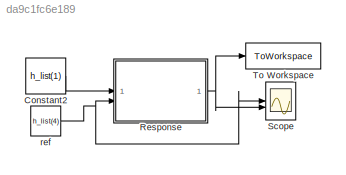
MODEL slx_da9c1fc6e189
KIND model
CONFIG AbsTol = auto
CONFIG EnableMultiTasking = off
CONFIG FixedStep = 0.02
CONFIG MaxStep = auto
CONFIG MinStep = auto
CONFIG RelTol = 1e-3
CONFIG SampleTimeConstraint = Unconstrained
CONFIG SolverName = ode4
CONFIG StartTime = 0.0
CONFIG StopTime = 250
BLOCK [Constant] Constant2
  Value = h_list(1)
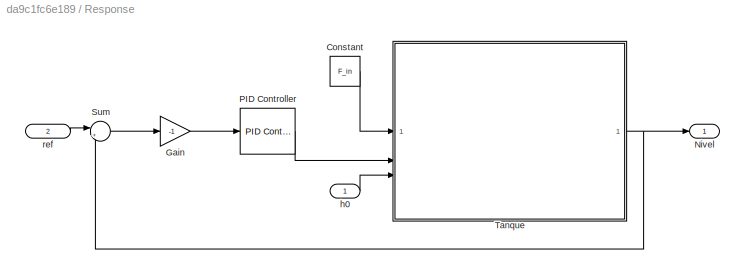
BLOCK [SubSystem] Response
BLOCK [Constant] Response/Constant
  Value = F_in
BLOCK [Gain] Response/Gain
  Gain = -1
BLOCK [Outport] Response/Nivel
BLOCK [Reference] Response/PID Controller  REF=slpidlib/PID Controller
  LibrarySourceBlock = simulink/Continuous/PID Controller
  SourceBlock = slpidlib/PID Controller
  SourceType = PID 1dof
BLOCK [Sum] Response/Sum
  Inputs = |+-
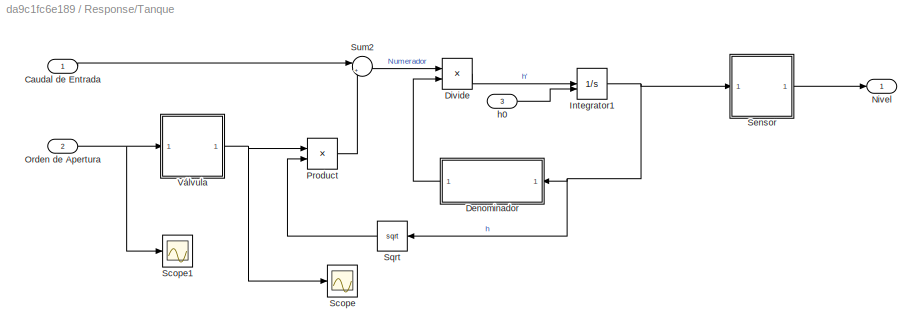
BLOCK [SubSystem] Response/Tanque
BLOCK [Inport] Response/Tanque/Caudal de Entrada
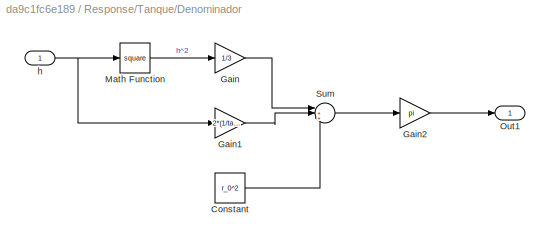
BLOCK [SubSystem] Response/Tanque/Denominador
  NameLocation = top
BLOCK [Constant] Response/Tanque/Denominador/Constant
  Value = r_0^2
BLOCK [Gain] Response/Tanque/Denominador/Gain
  Gain = 1/3
BLOCK [Gain] Response/Tanque/Denominador/Gain1
  Gain = 2*(1/tand(theta))*r_0
BLOCK [Gain] Response/Tanque/Denominador/Gain2
  Gain = pi
BLOCK [Math] Response/Tanque/Denominador/Math Function
  Operator = square
BLOCK [Outport] Response/Tanque/Denominador/Out1
BLOCK [Sum] Response/Tanque/Denominador/Sum
  Inputs = |+++
BLOCK [Inport] Response/Tanque/Denominador/h
BLOCK [Product] Response/Tanque/Divide
  Inputs = */
BLOCK [Integrator] Response/Tanque/Integrator1
  InitialCondition = h_list(5)
  InitialConditionSource = external
BLOCK [Outport] Response/Tanque/Nivel
BLOCK [Inport] Response/Tanque/Orden de Apertura
  Port = 2
BLOCK [Product] Response/Tanque/Product
BLOCK [Scope] Response/Tanque/Scope
  Floating = off
  NumInputPorts = 1
  ScopeSpecificationString = Simulink.scopes.TimeScopeBlockCfg('CurrentConfiguration', extmgr.ConfigurationSet(extmgr.Configuration('Core','General UI',true),extmgr.Configuration('Core','Source UI',true),extmgr.Configuration('Sources','WiredSimulink',true,'DataLoggingVariableName','ScopeData3'),extmgr.Configuration('Visuals','Time Domain',true,'SerializedDisplays',{struct('MinYLimReal','-0.00072','MaxYLimReal','0.00646','YLab...<+1455ch>
BLOCK [Scope] Response/Tanque/Scope1
  Floating = off
  NumInputPorts = 1
  ScopeSpecificationString = Simulink.scopes.TimeScopeBlockCfg('CurrentConfiguration', extmgr.ConfigurationSet(extmgr.Configuration('Core','General UI',true),extmgr.Configuration('Core','Source UI',true),extmgr.Configuration('Sources','WiredSimulink',true,'DataLoggingVariableName','ScopeData4'),extmgr.Configuration('Visuals','Time Domain',true,'SerializedDisplays',{struct('MinYLimReal','-0.10897','MaxYLimReal','0.98071','YLab...<+1500ch>
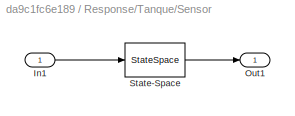
BLOCK [SubSystem] Response/Tanque/Sensor
BLOCK [Inport] Response/Tanque/Sensor/In1
BLOCK [Outport] Response/Tanque/Sensor/Out1
BLOCK [StateSpace] Response/Tanque/Sensor/State-Space
  A = A
  B = B
  C = C
  D = D
  InitialCondition = h_list(1)*10
BLOCK [Sqrt] Response/Tanque/Sqrt
  NameLocation = top
BLOCK [Sum] Response/Tanque/Sum2
  Inputs = |+-
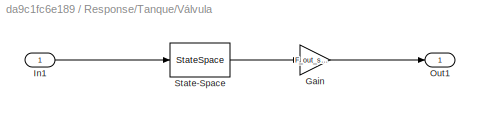
BLOCK [SubSystem] Response/Tanque/Válvula
BLOCK [Gain] Response/Tanque/Válvula/Gain
  Gain = F_out_sin_k
BLOCK [Inport] Response/Tanque/Válvula/In1
BLOCK [Outport] Response/Tanque/Válvula/Out1
BLOCK [StateSpace] Response/Tanque/Válvula/State-Space
  A = A
  B = B
  C = C
  D = D
  InitialCondition = k_list(1)*10
BLOCK [Inport] Response/Tanque/h0
  Port = 3
BLOCK [Inport] Response/h0
BLOCK [Inport] Response/ref
  Port = 2
BLOCK [Scope] Scope
  Floating = off
  NumInputPorts = 2
  ScopeSpecificationString = Simulink.scopes.TimeScopeBlockCfg('CurrentConfiguration', extmgr.ConfigurationSet(extmgr.Configuration('Core','General UI',true),extmgr.Configuration('Core','Source UI',true),extmgr.Configuration('Sources','WiredSimulink',true,'DataLoggingVariableName','ScopeData6'),extmgr.Configuration('Visuals','Time Domain',true,'SerializedDisplays',{struct('MinYLimReal','0.12442','MaxYLimReal','0.88024','YLabe...<+1473ch>
BLOCK [ToWorkspace] To Workspace
  FixptAsFi = on
  MaxDataPoints = inf
  SampleTime = -1
  SaveFormat = Timeseries
  VariableName = nivout
BLOCK [Constant] ref
  Value = h_list(4)
LINE Constant2:1 -> Response:1
LINE Response/Constant:1 -> Response/Tanque:1
LINE Response/Gain:1 -> Response/PID Controller:1
LINE Response/PID Controller:1 -> Response/Tanque:2
LINE Response/Sum:1 -> Response/Gain:1
LINE Response/Tanque/Caudal de Entrada:1 -> Response/Tanque/Sum2:1
LINE Response/Tanque/Denominador/Constant:1 -> Response/Tanque/Denominador/Sum:3
LINE Response/Tanque/Denominador/Gain1:1 -> Response/Tanque/Denominador/Sum:2
LINE Response/Tanque/Denominador/Gain2:1 -> Response/Tanque/Denominador/Out1:1
LINE Response/Tanque/Denominador/Gain:1 -> Response/Tanque/Denominador/Sum:1
LINE Response/Tanque/Denominador/Math Function:1 -> Response/Tanque/Denominador/Gain:1
LINE Response/Tanque/Denominador/Sum:1 -> Response/Tanque/Denominador/Gain2:1
NET Response/Tanque/Denominador/h:1 -> Response/Tanque/Denominador/Gain1:1, Response/Tanque/Denominador/Math Function:1
LINE Response/Tanque/Denominador:1 -> Response/Tanque/Divide:2
LINE Response/Tanque/Divide:1 -> Response/Tanque/Integrator1:1
NET Response/Tanque/Integrator1:1 -> Response/Tanque/Denominador:1, Response/Tanque/Sensor:1, Response/Tanque/Sqrt:1
NET Response/Tanque/Orden de Apertura:1 -> Response/Tanque/Scope1:1, Response/Tanque/Válvula:1
LINE Response/Tanque/Product:1 -> Response/Tanque/Sum2:2
LINE Response/Tanque/Sensor/In1:1 -> Response/Tanque/Sensor/State-Space:1
LINE Response/Tanque/Sensor/State-Space:1 -> Response/Tanque/Sensor/Out1:1
LINE Response/Tanque/Sensor:1 -> Response/Tanque/Nivel:1
LINE Response/Tanque/Sqrt:1 -> Response/Tanque/Product:2
LINE Response/Tanque/Sum2:1 -> Response/Tanque/Divide:1
LINE Response/Tanque/Válvula/Gain:1 -> Response/Tanque/Válvula/Out1:1
LINE Response/Tanque/Válvula/In1:1 -> Response/Tanque/Válvula/State-Space:1
LINE Response/Tanque/Válvula/State-Space:1 -> Response/Tanque/Válvula/Gain:1
NET Response/Tanque/Válvula:1 -> Response/Tanque/Product:1, Response/Tanque/Scope:1
LINE Response/Tanque/h0:1 -> Response/Tanque/Integrator1:2
NET Response/Tanque:1 -> Response/Nivel:1, Response/Sum:2
LINE Response/h0:1 -> Response/Tanque:3
LINE Response/ref:1 -> Response/Sum:1
NET Response:1 -> Scope:2, To Workspace:1
NET ref:1 -> Response:2, Scope:1
note: NET lines group one-source signal fan-out (src -> all destinations, sorted); 1:1 wires keep LINE
